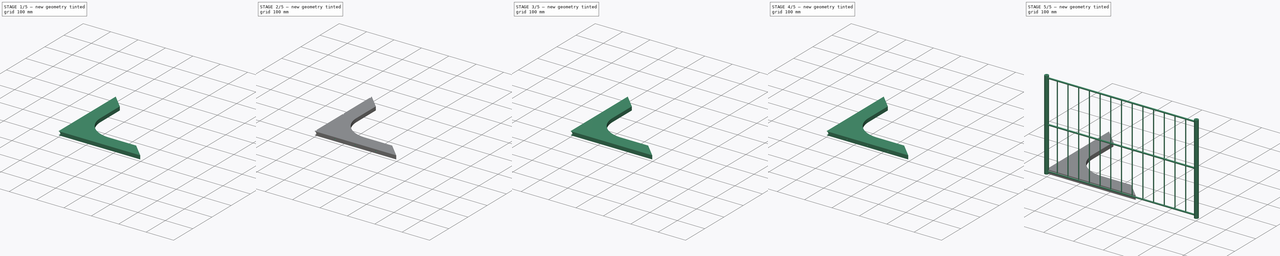
[diagram: build sequence overview — one tinted view per stage of 5, left to right]
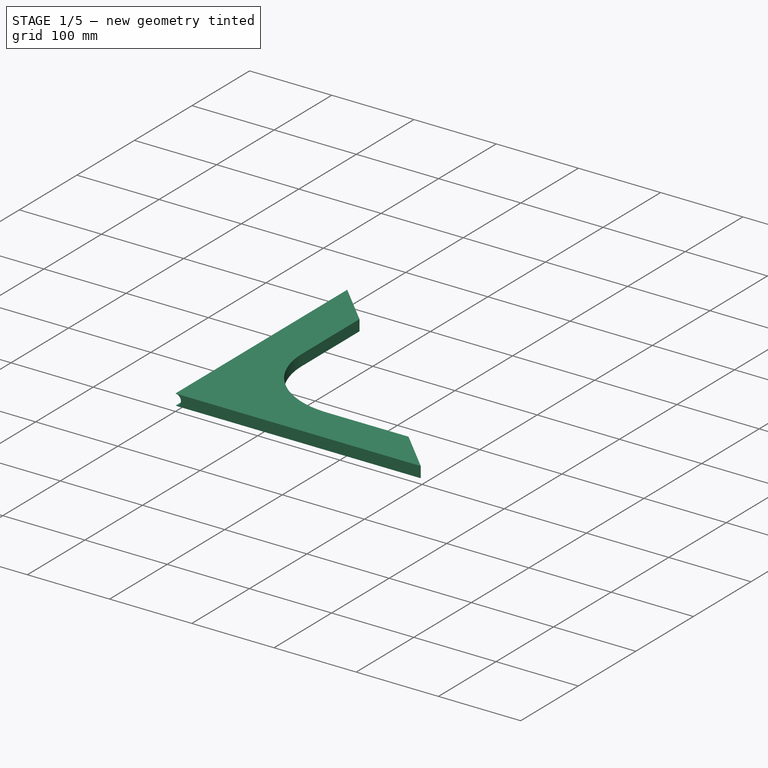
[diagram: stage 1 of 5 — iso view after this stage's code; geometry added in this stage tinted green]
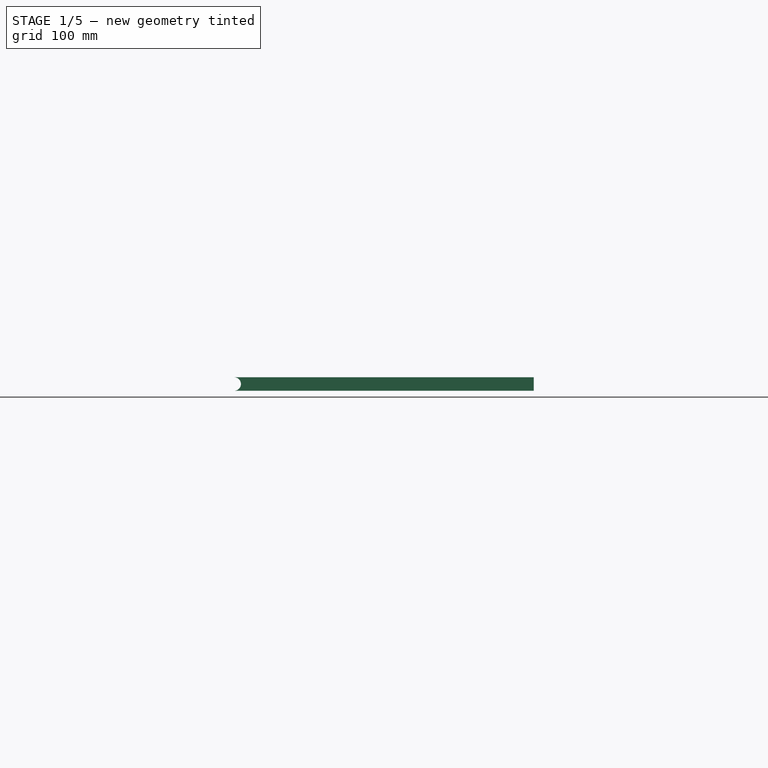
[diagram: stage 1 of 5 — front view after this stage's code; geometry added in this stage tinted green]
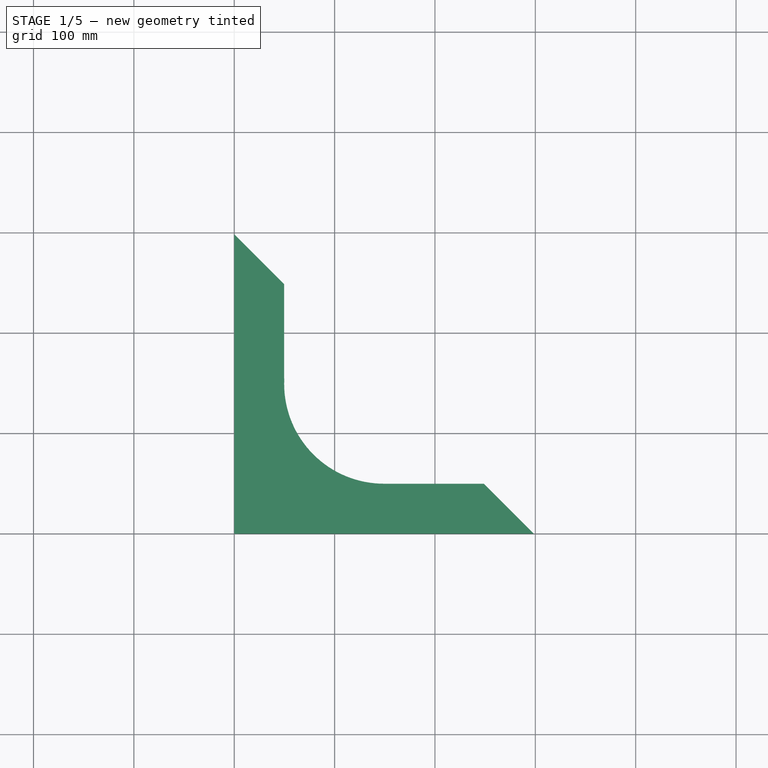
[diagram: stage 1 of 5 — top view after this stage's code; geometry added in this stage tinted green]
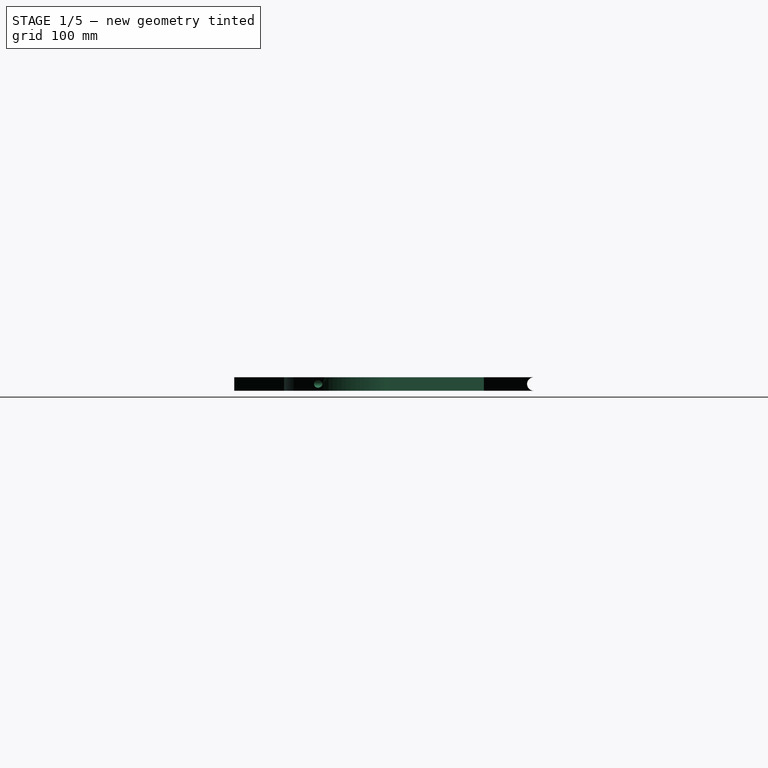
[diagram: stage 1 of 5 — right view after this stage's code; geometry added in this stage tinted green]
FCSTD DOCUMENT  (FreeCAD 0.20R29603 (Git))
Label: Shelf
License: All rights reserved
LicenseURL: http://en.wikipedia.org/wiki/All_rights_reserved
objects: PartDesign::SubtractiveCylinder×10, PartDesign::LinearPattern×6, Sketcher::SketchObject×5, Spreadsheet::Sheet×5, PartDesign::Pad×5, PartDesign::Body×5, PartDesign::SubtractiveBox×4, Part::FeaturePython×3, App::Part×3
note: 54 computed .brp shape members not serialized (recipe doc carries the construction recipe); baked Part::Feature solids carry a one-line shape summary decoded from their .brp

FEATURE [PartDesign::Body] Body003
  Group = -> [Sketch003,Pad003,Cylinder,Cylinder001,Box,Box001,Cylinder002,LinearPattern,Cylinder003,LinearPattern001,Cylinder004,LinearPattern002]
  Origin = -> Origin004
  Tip = -> LinearPattern002
FEATURE [Spreadsheet::Sheet] Spreadsheet003  label="Shelf_holder_dims"
  cells = A1=shelf_holder_height; B1(shelf_holder_height)=298.45; A2=shelf_holder_width; B2(shelf_holder_width)=13.4; A3=shelf_holder_length; B3(shelf_holder_length)=298.45
FEATURE [App::Part] Part001  label="shelf holder left"
  Group = -> [Body003,Spreadsheet003]
  Origin = -> Origin005
  Placement = pos=(494.95,2.748e-13,5.5e-14) rot=(-0.57735,-0.57735,-0.57735;4.18879rad)
FEATURE [Sketcher::SketchObject] Sketch004
  FullyConstrained = true
  MapMode = 5
  Support = -> [XY_Plane006]
  expr: Constraints[6] = <<Shelf_holder_dims001>>.shelf_holder_height
  expr: Constraints[7] = <<Shelf_holder_dims001>>.shelf_holder_length
  sketch-geometry (3):
    g0: LineSegment StartX=0 StartY=0 StartZ=0 EndX=298.45 EndY=0 EndZ=0
    g1: LineSegment StartX=0 StartY=0 StartZ=0 EndX=0 EndY=298.45 EndZ=0
    g2: LineSegment StartX=0 StartY=298.45 StartZ=0 EndX=298.45 EndY=0 EndZ=0
  constraints (8):
    c: Coincident(g0,g-1)
    c: PointOnObject(g0,g-1)
    c: Coincident(g1,g0)
    c: PointOnObject(g1,g-2)
    c: Coincident(g2,g1)
    c: Coincident(g2,g0)
    c: DistanceY(g1,g1) = 298.45
    c: DistanceX(g0,g0) = 298.45
FEATURE [PartDesign::Pad] Pad004
  Direction = (0,0,1)
  Length = 13.4
  Length2 = 10
  Profile = -> Sketch004
  ReferenceAxis = -> Sketch004 [N_Axis]
  Type = 0
  expr: Length = <<Shelf_holder_dims001>>.shelf_holder_width
FEATURE [PartDesign::SubtractiveCylinder] Cylinder005
  Angle = 180
  AttacherType = Attacher::AttachEngine3D
  AttachmentOffset = pos=(0,6.7,0) rot=(0,0,1;1.5708rad)
  BaseFeature = -> Pad004
  FirstAngle = 0
  Height = 298.45
  MapMode = 5
  Placement = pos=(0,1.5e-15,6.7) rot=(0.57735,0.57735,0.57735;4.18879rad)
  Radius = 6.7
  SecondAngle = 0
  Support = -> [Pad004]
  expr: .AttachmentOffset.Base.y = <<Shelf_holder_dims001>>.shelf_holder_width / 2
  expr: Height = <<Shelf_holder_dims001>>.shelf_holder_length
  expr: Radius = <<Shelf_holder_dims001>>.shelf_holder_width / 2
FEATURE [PartDesign::SubtractiveCylinder] Cylinder006
  Angle = 360
  AttacherType = Attacher::AttachEngine3D
  AttachmentOffset = pos=(149.225,149.225,-8) rot=(0,0,1;0rad)
  BaseFeature = -> Cylinder005
  FirstAngle = 0
  Height = 32
  MapMode = 5
  Placement = pos=(149.225,149.225,-8) rot=(0,0,1;0rad)
  Radius = 99.4833
  SecondAngle = 0
  Support = -> [Cylinder005]
  expr: .AttachmentOffset.Base.x = <<Shelf_holder_dims001>>.shelf_holder_length / 2
  expr: .AttachmentOffset.Base.y = <<Shelf_holder_dims001>>.shelf_holder_height / 2
  expr: Radius = <<Shelf_holder_dims001>>.shelf_holder_length / 3
FEATURE [PartDesign::SubtractiveBox] Box002
  AttacherType = Attacher::AttachEngine3D
  AttachmentOffset = pos=(0,69.4833,-17) rot=(0,0,1;0rad)
  BaseFeature = -> Cylinder006
  Height = 21
  Length = 149.225
  MapMode = 5
  Placement = pos=(149.225,79.7417,17) rot=(1,0,0;3.14159rad)
  Support = -> [Cylinder006]
  Width = 30
  expr: .AttachmentOffset.Base.y = <<Shelf_holder_dims001>>.shelf_holder_length / 3 - 30
  expr: Length = <<Shelf_holder_dims001>>.shelf_holder_length / 2
FEATURE [PartDesign::SubtractiveBox] Box003
  AttacherType = Attacher::AttachEngine3D
  AttachmentOffset = pos=(-99.4833,-223.837,-17) rot=(0,0,1;0rad)
  BaseFeature = -> Box002
  Height = 22
  Length = 33
  MapMode = 5
  Placement = pos=(49.7417,303.579,17) rot=(1,0,0;3.14159rad)
  Support = -> [Box002]
  Width = 149.225
  expr: .AttachmentOffset.Base.x = <<Shelf_holder_dims001>>.shelf_holder_height / -3
  expr: .AttachmentOffset.Base.y = 3 * <<Shelf_holder_dims001>>.shelf_holder_length / -4
  expr: Width = <<Shelf_holder_dims001>>.shelf_holder_length / 2
FEATURE [PartDesign::SubtractiveCylinder] Cylinder007
  Angle = 360
  AttacherType = Attacher::AttachEngine3D
  AttachmentOffset = pos=(-74.6125,6.7,5) rot=(0,0,1;0rad)
  BaseFeature = -> Box003
  FirstAngle = 0
  Height = 105
  MapMode = 5
  Placement = pos=(74.6125,5,6.7) rot=(0,0.707107,0.707107;3.14159rad)
  Radius = 3.7
  SecondAngle = 0
  Support = -> [XZ_Plane006]
  expr: .AttachmentOffset.Base.x = <<Shelf_holder_dims001>>.shelf_holder_length / -4
  expr: .AttachmentOffset.Base.y = <<Shelf_holder_dims001>>.shelf_holder_width / 2
  expr: Radius = <<Shelf_holder_dims001>>.shelf_holder_width / 2 - 3
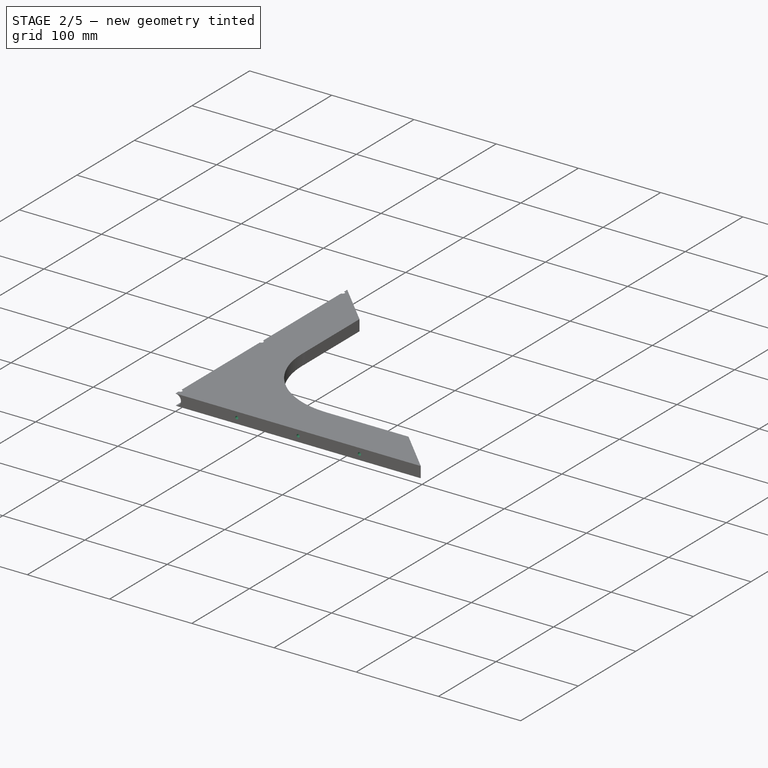
[diagram: stage 2 of 5 — iso view after this stage's code; geometry added in this stage tinted green]
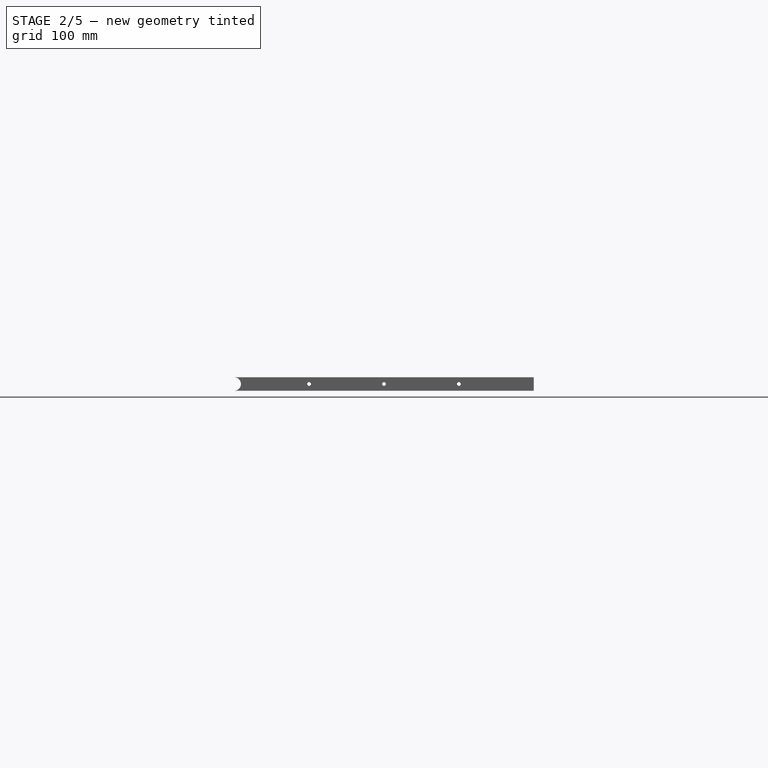
[diagram: stage 2 of 5 — front view after this stage's code; geometry added in this stage tinted green]
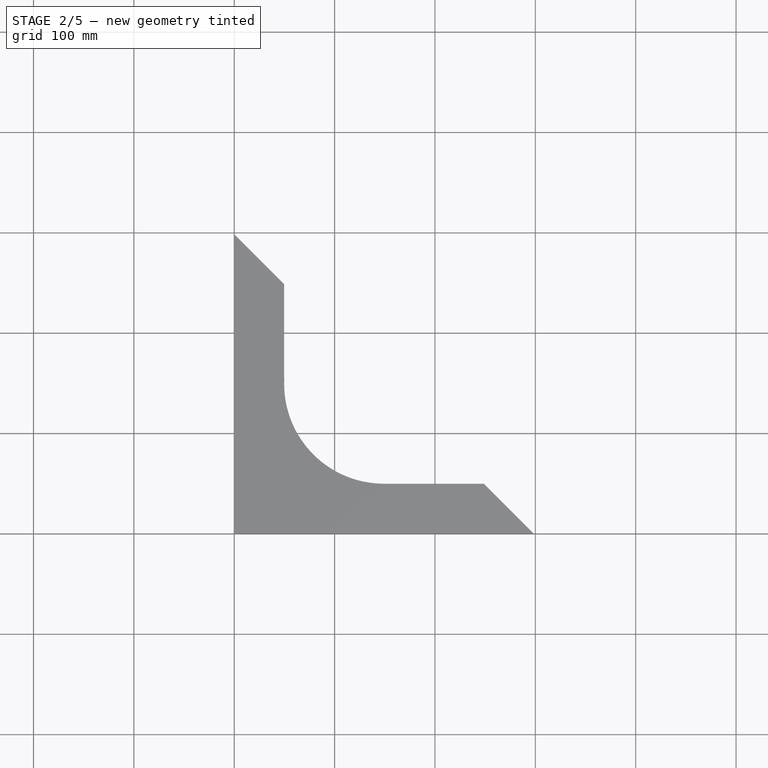
[diagram: stage 2 of 5 — top view after this stage's code; geometry added in this stage tinted green]
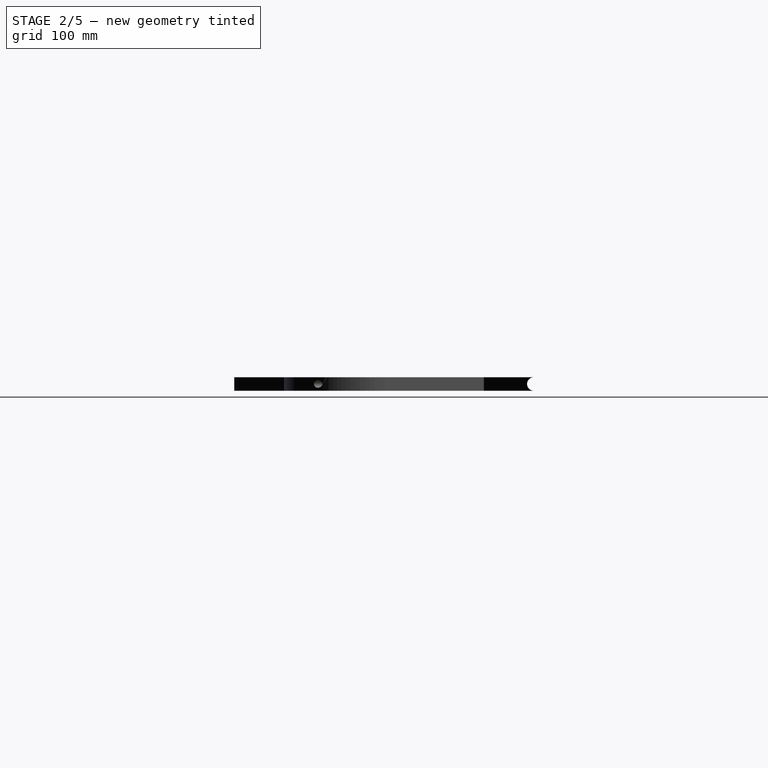
[diagram: stage 2 of 5 — right view after this stage's code; geometry added in this stage tinted green]
FEATURE [PartDesign::LinearPattern] LinearPattern003
  BaseFeature = -> Cylinder007
  Direction = -> X_Axis006
  Length = 149.225
  Occurrences = 3
  Originals = -> [Cylinder007]
  Placement = pos=(74.6125,5,6.7) rot=(0,0.707107,0.707107;3.14159rad)
  expr: Length = <<Shelf_holder_dims001>>.shelf_holder_height / 2
FEATURE [PartDesign::SubtractiveCylinder] Cylinder008
  Angle = 360
  AttacherType = Attacher::AttachEngine3D
  AttachmentOffset = pos=(-74.6125,6.7,0) rot=(0,0,1;0rad)
  BaseFeature = -> LinearPattern003
  FirstAngle = 0
  Height = 100
  MapMode = 5
  Placement = pos=(74.6125,-1.5e-15,6.7) rot=(0,0.707107,0.707107;3.14159rad)
  Radius = 1.85
  SecondAngle = 0
  Support = -> [XZ_Plane006]
  expr: .AttachmentOffset.Base.x = <<Shelf_holder_dims001>>.shelf_holder_length / -4
  expr: .AttachmentOffset.Base.y = <<Shelf_holder_dims001>>.shelf_holder_width / 2
  expr: Radius = (<<Shelf_holder_dims001>>.shelf_holder_width / 2 - 3) / 2
FEATURE [PartDesign::LinearPattern] LinearPattern004
  BaseFeature = -> Cylinder008
  Direction = -> X_Axis006
  Length = 149.225
  Occurrences = 3
  Originals = -> [Cylinder008]
  Placement = pos=(74.6125,1e-15,6.7) rot=(0,0.707107,0.707107;3.14159rad)
  expr: Length = <<Shelf_holder_dims001>>.shelf_holder_length / 2
FEATURE [PartDesign::SubtractiveCylinder] Cylinder009
  Angle = 360
  AttacherType = Attacher::AttachEngine3D
  AttachmentOffset = pos=(0,8.05625,5) rot=(0,0,1;0rad)
  BaseFeature = -> LinearPattern004
  FirstAngle = 0
  Height = 10
  MapMode = 5
  Placement = pos=(0,8.05625,5) rot=(0,0,1;0rad)
  Radius = 2.55
  SecondAngle = 0
  Support = -> [XY_Plane006]
FEATURE [PartDesign::LinearPattern] LinearPattern005
  BaseFeature = -> Cylinder009
  Direction = -> Y_Axis006
  Length = 282.337
  Occurrences = 3
  Originals = -> [Cylinder009]
  Placement = pos=(0,8.05625,5) rot=(0,0,1;0rad)
  expr: Length = 141.16875 * 2
FEATURE [PartDesign::Body] Body004
  Group = -> [Sketch004,Pad004,Cylinder005,Cylinder006,Box002,Box003,Cylinder007,LinearPattern003,Cylinder008,LinearPattern004,Cylinder009,LinearPattern005]
  Origin = -> Origin006
  Tip = -> LinearPattern005
FEATURE [Spreadsheet::Sheet] Spreadsheet004  label="Shelf_holder_dims001"
  cells = A1=shelf_holder_height; B1(shelf_holder_height)=298.45; A2=shelf_holder_width; B2(shelf_holder_width)=13.4; A3=shelf_holder_length; B3(shelf_holder_length)=298.45
FEATURE [App::Part] Part002  label="shelf holder right"
  Group = -> [Body004,Spreadsheet004]
  Origin = -> Origin007
  Placement = pos=(-6.7,-1.5e-15,0) rot=(0.57735,0.57735,0.57735;2.0944rad)
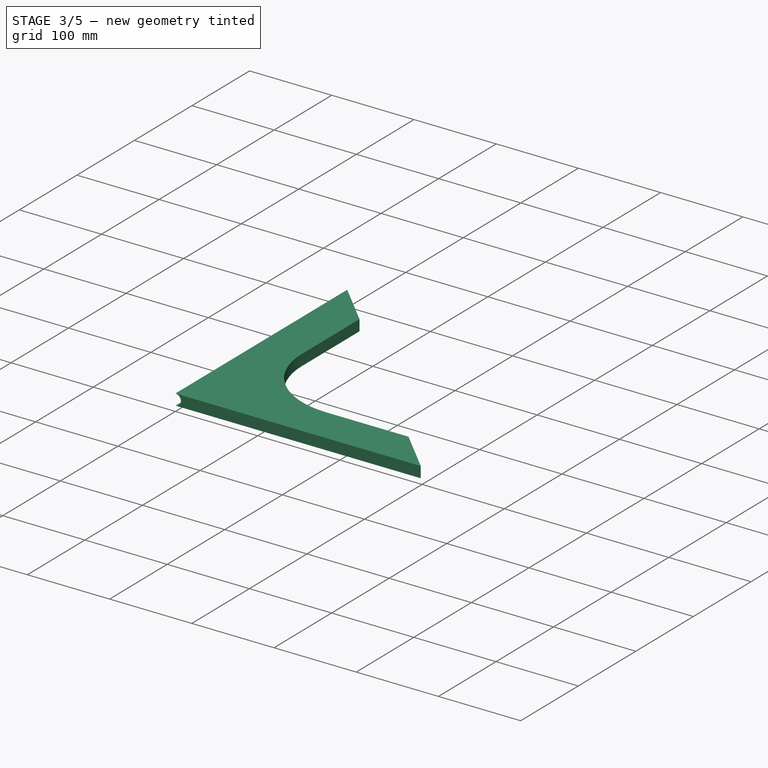
[diagram: stage 3 of 5 — iso view after this stage's code; geometry added in this stage tinted green]
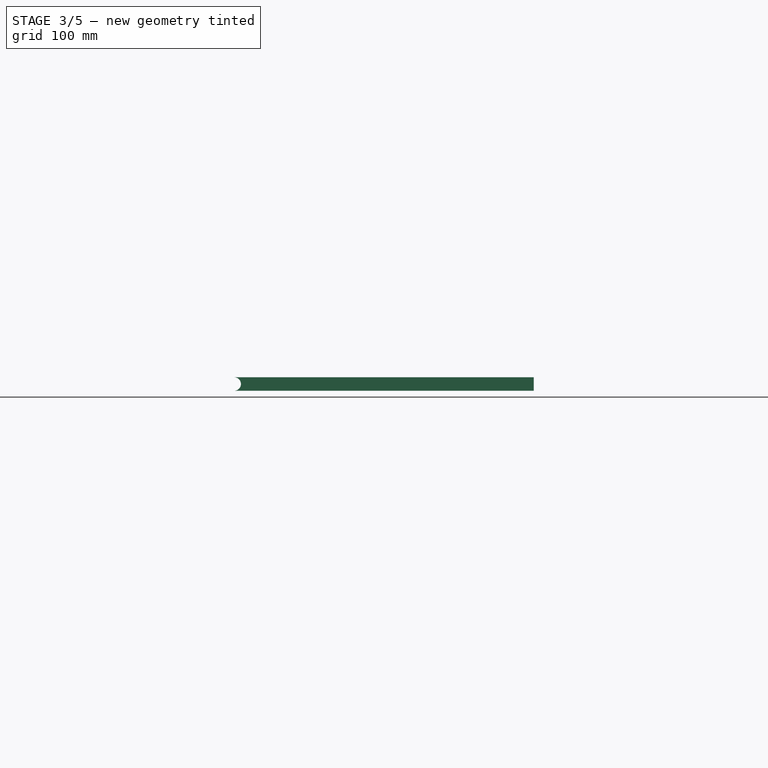
[diagram: stage 3 of 5 — front view after this stage's code; geometry added in this stage tinted green]
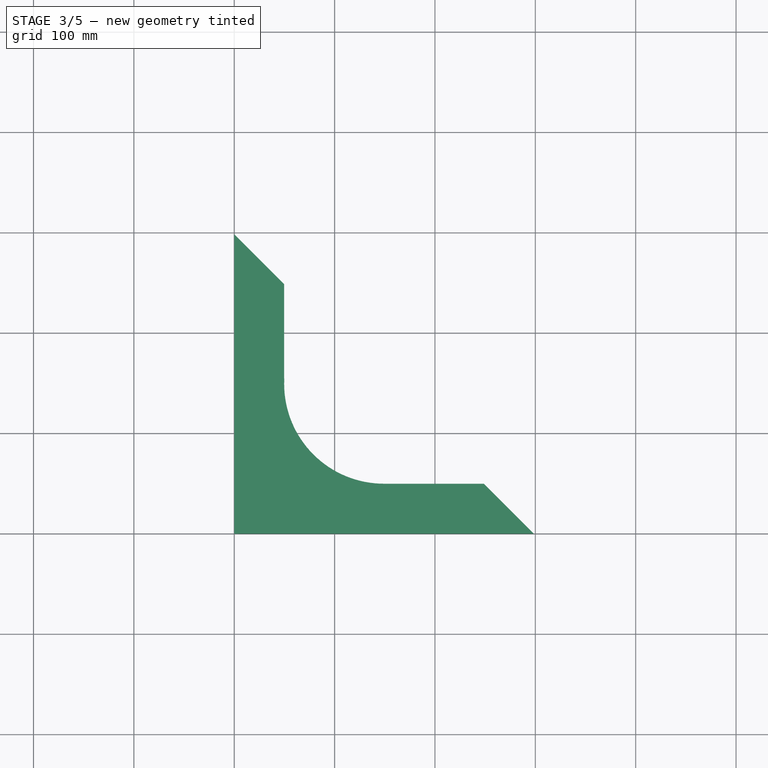
[diagram: stage 3 of 5 — top view after this stage's code; geometry added in this stage tinted green]
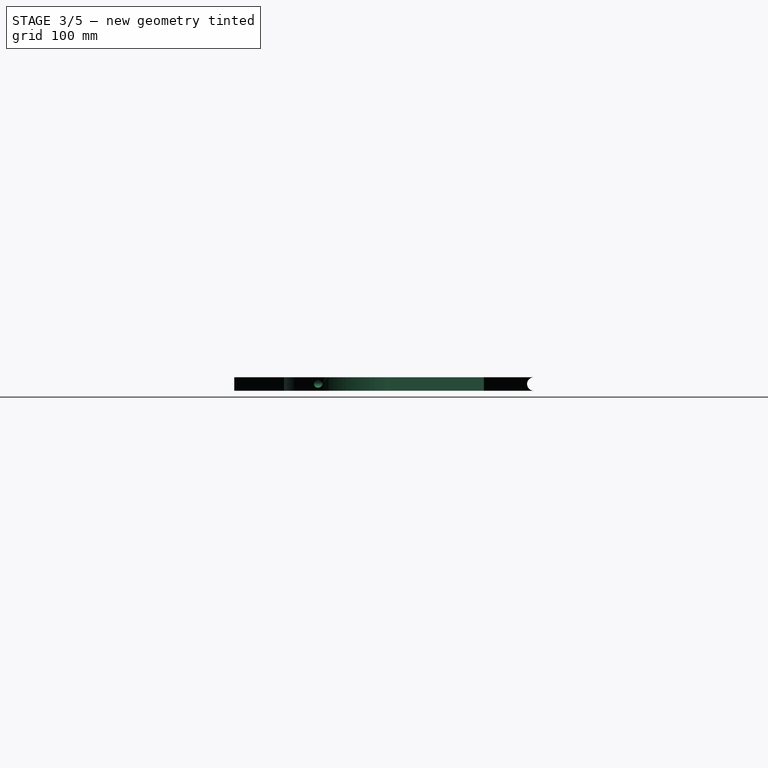
[diagram: stage 3 of 5 — right view after this stage's code; geometry added in this stage tinted green]
FEATURE [App::Part] Part  label="Shelf_part"
  Group = -> [Body,Spreadsheet,Body001,Spreadsheet001,Spreadsheet002,Body002,Array,Array002,Array003]
  Origin = -> Origin
FEATURE [Sketcher::SketchObject] Sketch003
  FullyConstrained = true
  MapMode = 5
  Support = -> [XY_Plane004]
  expr: Constraints[6] = <<Shelf_holder_dims>>.shelf_holder_height
  expr: Constraints[7] = <<Shelf_holder_dims>>.shelf_holder_length
  sketch-geometry (3):
    g0: LineSegment StartX=0 StartY=0 StartZ=0 EndX=298.45 EndY=0 EndZ=0
    g1: LineSegment StartX=0 StartY=0 StartZ=0 EndX=0 EndY=298.45 EndZ=0
    g2: LineSegment StartX=0 StartY=298.45 StartZ=0 EndX=298.45 EndY=0 EndZ=0
  constraints (8):
    c: Coincident(g0,g-1)
    c: PointOnObject(g0,g-1)
    c: Coincident(g1,g0)
    c: PointOnObject(g1,g-2)
    c: Coincident(g2,g1)
    c: Coincident(g2,g0)
    c: DistanceY(g1,g1) = 298.45
    c: DistanceX(g0,g0) = 298.45
FEATURE [PartDesign::Pad] Pad003
  Direction = (0,0,1)
  Length = 13.4
  Length2 = 10
  Profile = -> Sketch003
  ReferenceAxis = -> Sketch003 [N_Axis]
  Type = 0
  expr: Length = <<Shelf_holder_dims>>.shelf_holder_width
FEATURE [PartDesign::SubtractiveCylinder] Cylinder
  Angle = 180
  AttacherType = Attacher::AttachEngine3D
  AttachmentOffset = pos=(0,6.7,0) rot=(0,0,1;1.5708rad)
  BaseFeature = -> Pad003
  FirstAngle = 0
  Height = 298.45
  MapMode = 5
  Placement = pos=(0,1.5e-15,6.7) rot=(0.57735,0.57735,0.57735;4.18879rad)
  Radius = 6.7
  SecondAngle = 0
  Support = -> [Pad003]
  expr: .AttachmentOffset.Base.y = <<Shelf_holder_dims>>.shelf_holder_width / 2
  expr: Height = <<Shelf_holder_dims>>.shelf_holder_length
  expr: Radius = <<Shelf_holder_dims>>.shelf_holder_width / 2
FEATURE [PartDesign::SubtractiveCylinder] Cylinder001
  Angle = 360
  AttacherType = Attacher::AttachEngine3D
  AttachmentOffset = pos=(149.225,149.225,-8) rot=(0,0,1;0rad)
  BaseFeature = -> Cylinder
  FirstAngle = 0
  Height = 32
  MapMode = 5
  Placement = pos=(149.225,149.225,-8) rot=(0,0,1;0rad)
  Radius = 99.4833
  SecondAngle = 0
  Support = -> [Cylinder]
  expr: .AttachmentOffset.Base.x = <<Shelf_holder_dims>>.shelf_holder_length / 2
  expr: .AttachmentOffset.Base.y = <<Shelf_holder_dims>>.shelf_holder_height / 2
  expr: Radius = <<Shelf_holder_dims>>.shelf_holder_length / 3
FEATURE [PartDesign::SubtractiveBox] Box
  AttacherType = Attacher::AttachEngine3D
  AttachmentOffset = pos=(0,69.4833,-17) rot=(0,0,1;0rad)
  BaseFeature = -> Cylinder001
  Height = 21
  Length = 149.225
  MapMode = 5
  Placement = pos=(149.225,79.7417,17) rot=(1,0,0;3.14159rad)
  Support = -> [Cylinder001]
  Width = 30
  expr: .AttachmentOffset.Base.y = <<Shelf_holder_dims>>.shelf_holder_length / 3 - 30
  expr: Length = <<Shelf_holder_dims>>.shelf_holder_length / 2
FEATURE [PartDesign::SubtractiveBox] Box001
  AttacherType = Attacher::AttachEngine3D
  AttachmentOffset = pos=(-99.4833,-223.837,-17) rot=(0,0,1;0rad)
  BaseFeature = -> Box
  Height = 22
  Length = 33
  MapMode = 5
  Placement = pos=(49.7417,303.579,17) rot=(1,0,0;3.14159rad)
  Support = -> [Box]
  Width = 149.225
  expr: .AttachmentOffset.Base.x = <<Shelf_holder_dims>>.shelf_holder_height / -3
  expr: .AttachmentOffset.Base.y = 3 * <<Shelf_holder_dims>>.shelf_holder_length / -4
  expr: Width = <<Shelf_holder_dims>>.shelf_holder_length / 2
FEATURE [PartDesign::SubtractiveCylinder] Cylinder002
  Angle = 360
  AttacherType = Attacher::AttachEngine3D
  AttachmentOffset = pos=(-74.6125,6.7,5) rot=(0,0,1;0rad)
  BaseFeature = -> Box001
  FirstAngle = 0
  Height = 105
  MapMode = 5
  Placement = pos=(74.6125,5,6.7) rot=(0,0.707107,0.707107;3.14159rad)
  Radius = 3.7
  SecondAngle = 0
  Support = -> [XZ_Plane004]
  expr: .AttachmentOffset.Base.x = <<Shelf_holder_dims>>.shelf_holder_length / -4
  expr: .AttachmentOffset.Base.y = <<Shelf_holder_dims>>.shelf_holder_width / 2
  expr: Radius = <<Shelf_holder_dims>>.shelf_holder_width / 2 - 3
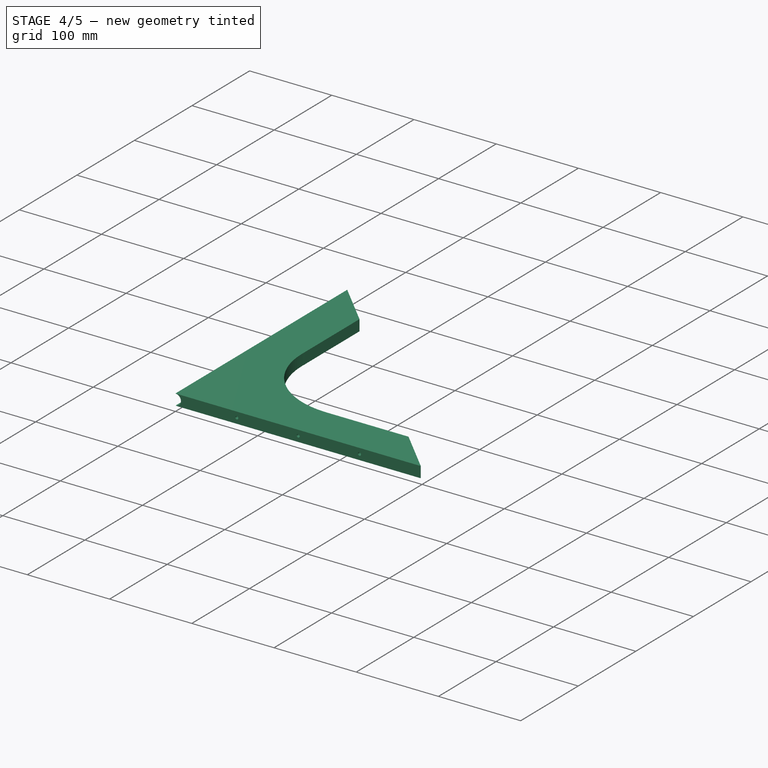
[diagram: stage 4 of 5 — iso view after this stage's code; geometry added in this stage tinted green]
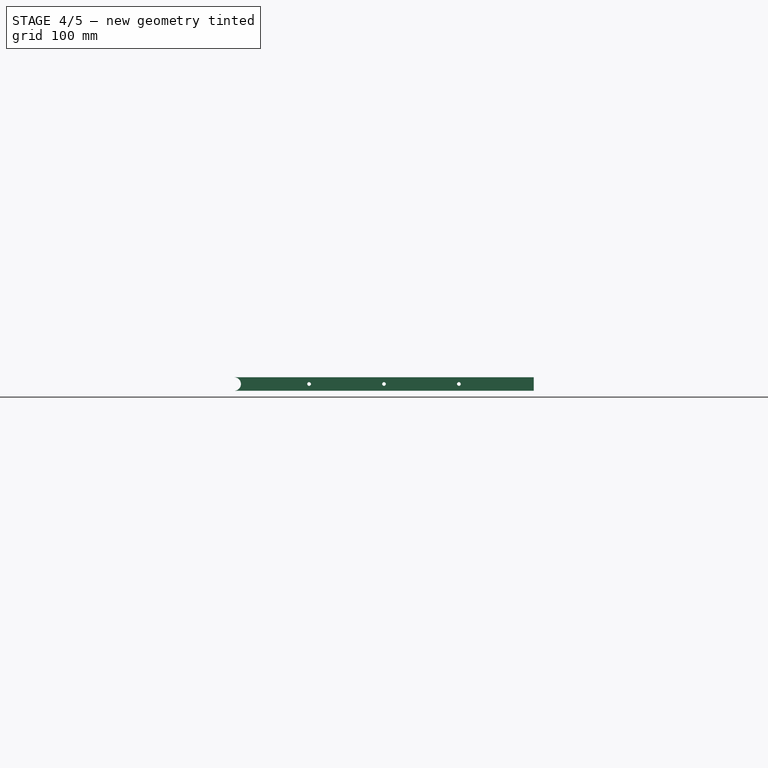
[diagram: stage 4 of 5 — front view after this stage's code; geometry added in this stage tinted green]
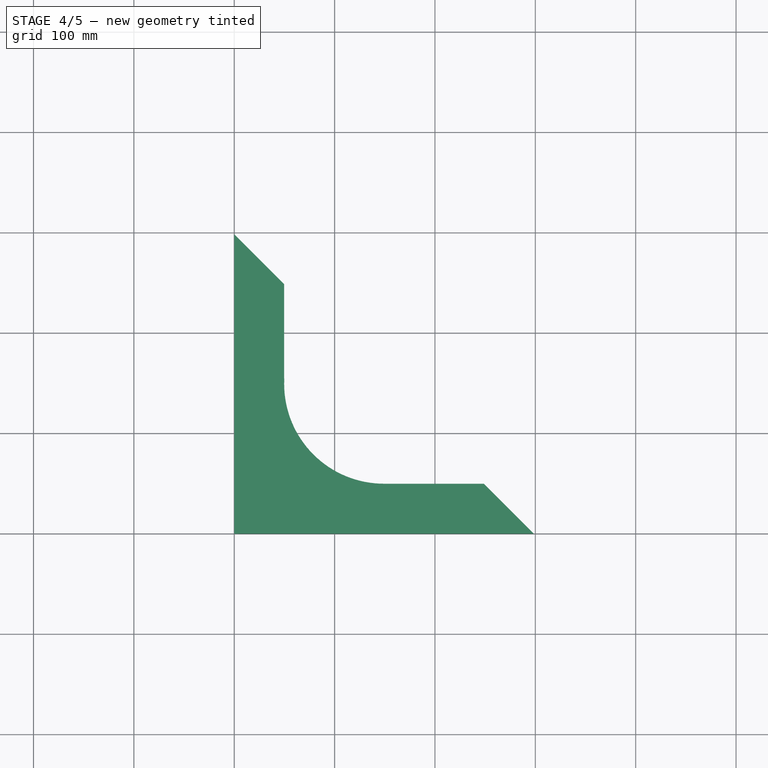
[diagram: stage 4 of 5 — top view after this stage's code; geometry added in this stage tinted green]
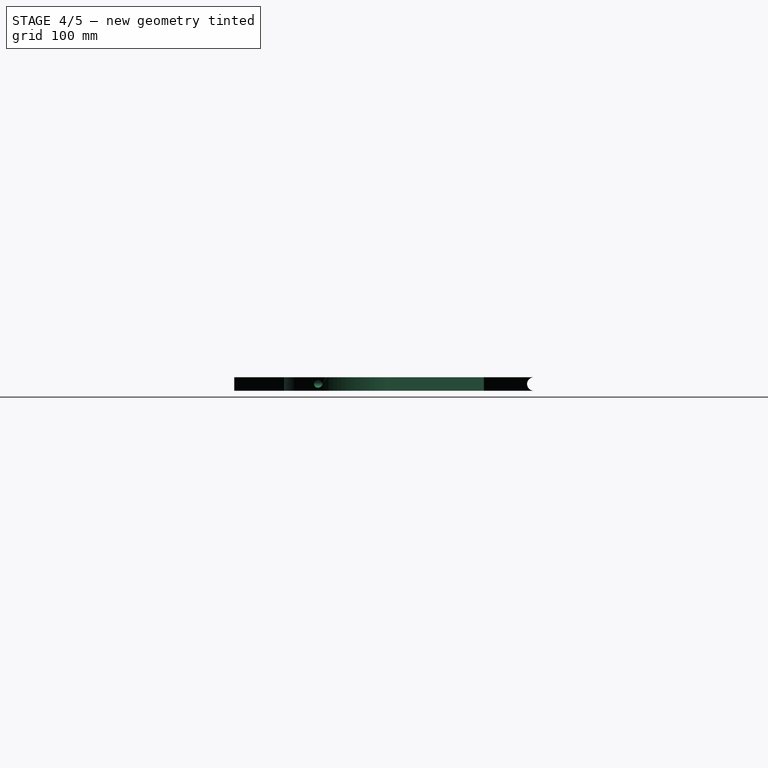
[diagram: stage 4 of 5 — right view after this stage's code; geometry added in this stage tinted green]
FEATURE [PartDesign::LinearPattern] LinearPattern
  BaseFeature = -> Cylinder002
  Direction = -> X_Axis004
  Length = 149.225
  Occurrences = 3
  Originals = -> [Cylinder002]
  Placement = pos=(74.6125,5,6.7) rot=(0,0.707107,0.707107;3.14159rad)
  expr: Length = <<Shelf_holder_dims>>.shelf_holder_height / 2
FEATURE [PartDesign::SubtractiveCylinder] Cylinder003
  Angle = 360
  AttacherType = Attacher::AttachEngine3D
  AttachmentOffset = pos=(-74.6125,6.7,0) rot=(0,0,1;0rad)
  BaseFeature = -> LinearPattern
  FirstAngle = 0
  Height = 100
  MapMode = 5
  Placement = pos=(74.6125,-1.5e-15,6.7) rot=(0,0.707107,0.707107;3.14159rad)
  Radius = 1.85
  SecondAngle = 0
  Support = -> [XZ_Plane004]
  expr: .AttachmentOffset.Base.x = <<Shelf_holder_dims>>.shelf_holder_length / -4
  expr: .AttachmentOffset.Base.y = <<Shelf_holder_dims>>.shelf_holder_width / 2
  expr: Radius = (<<Shelf_holder_dims>>.shelf_holder_width / 2 - 3) / 2
FEATURE [PartDesign::LinearPattern] LinearPattern001
  BaseFeature = -> Cylinder003
  Direction = -> X_Axis004
  Length = 149.225
  Occurrences = 3
  Originals = -> [Cylinder003]
  Placement = pos=(74.6125,1e-15,6.7) rot=(0,0.707107,0.707107;3.14159rad)
  expr: Length = <<Shelf_holder_dims>>.shelf_holder_length / 2
FEATURE [PartDesign::SubtractiveCylinder] Cylinder004
  Angle = 360
  AttacherType = Attacher::AttachEngine3D
  AttachmentOffset = pos=(0,8.05625,0) rot=(0,0,1;0rad)
  BaseFeature = -> LinearPattern001
  FirstAngle = 0
  Height = 10
  MapMode = 5
  Placement = pos=(0,8.05625,0) rot=(0,0,1;0rad)
  Radius = 2.55
  SecondAngle = 0
  Support = -> [XY_Plane004]
FEATURE [PartDesign::LinearPattern] LinearPattern002
  BaseFeature = -> Cylinder004
  Direction = -> Y_Axis004
  Length = 282.337
  Occurrences = 3
  Originals = -> [Cylinder004]
  Placement = pos=(0,8.05625,0) rot=(0,0,1;0rad)
  expr: Length = 141.16875 * 2
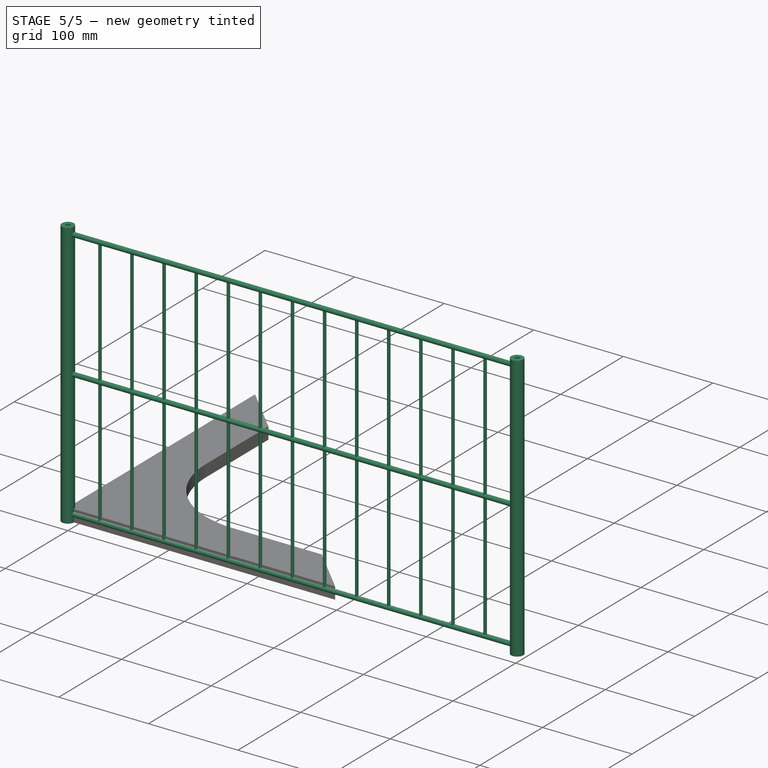
[diagram: stage 5 of 5 — iso view after this stage's code; geometry added in this stage tinted green]
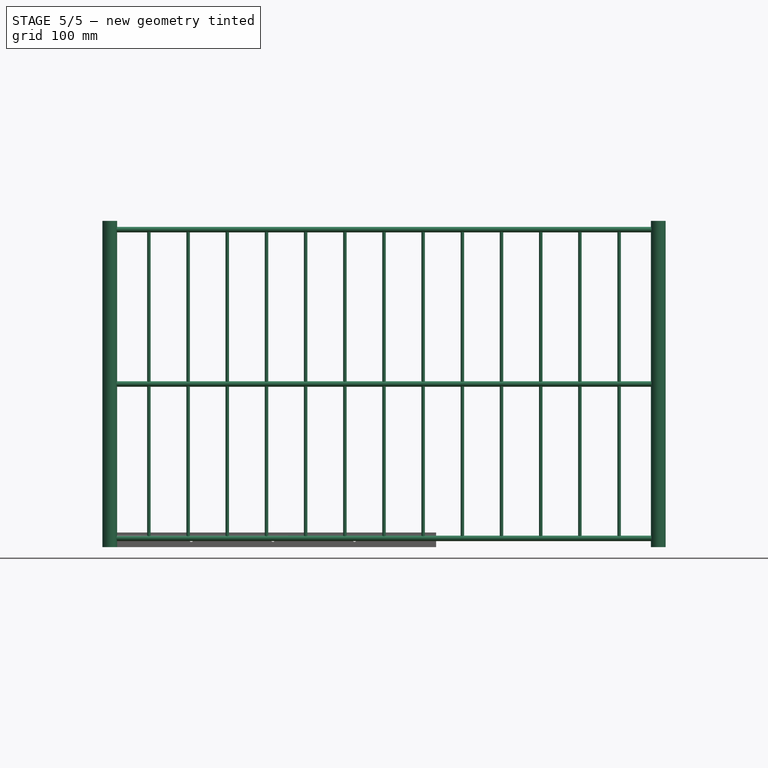
[diagram: stage 5 of 5 — front view after this stage's code; geometry added in this stage tinted green]
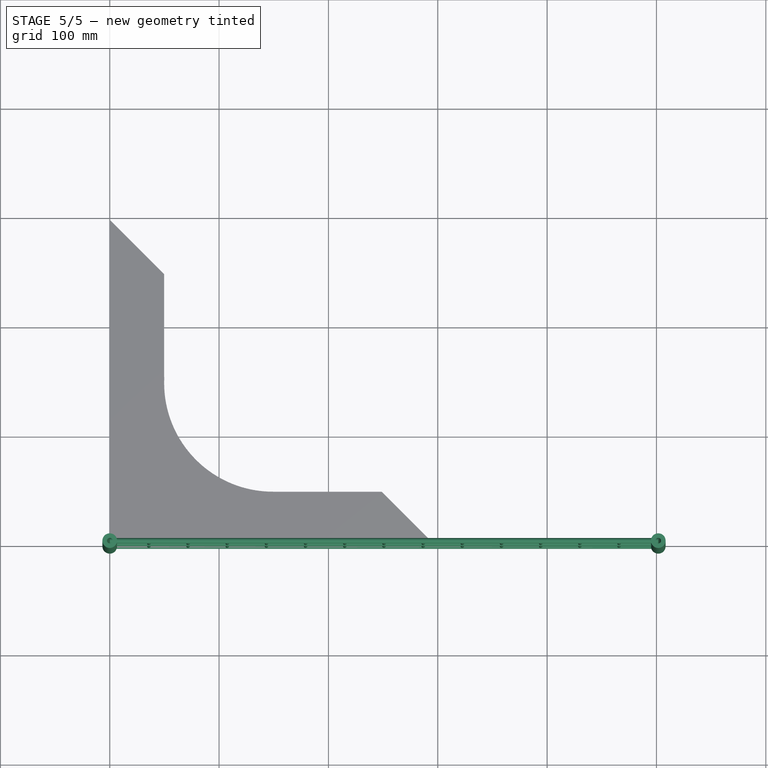
[diagram: stage 5 of 5 — top view after this stage's code; geometry added in this stage tinted green]
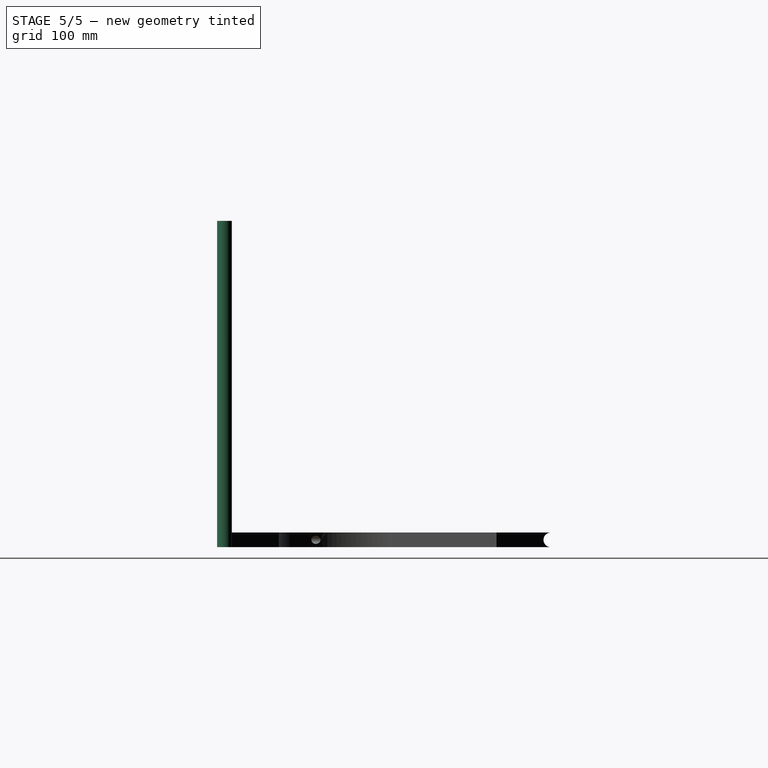
[diagram: stage 5 of 5 — right view after this stage's code; geometry added in this stage tinted green]
FEATURE [Sketcher::SketchObject] Sketch
  FullyConstrained = true
  MapMode = 5
  Support = -> [XY_Plane001]
  expr: Constraints[1] = <<cross_rod_dims>>.cross_rod_diameter
  sketch-geometry (1):
    g0: Circle CenterX=0 CenterY=0 CenterZ=0 NormalX=0 NormalY=0 NormalZ=1 AngleXU=0 Radius=2.5
  constraints (2):
    c: Coincident(g0,g-1)
    c: Diameter(g0) = 5
FEATURE [Spreadsheet::Sheet] Spreadsheet  label="cross_rod_dims"
  cells = A1=cross_rod_diameter; B1(cross_rod_diameter)=5; A2=cross_rod_length; B2(cross_rod_length)=501.65
FEATURE [Sketcher::SketchObject] Sketch001
  FullyConstrained = true
  MapMode = 5
  Support = -> [XY_Plane002]
  expr: Constraints[1] = <<shelf_rod_dims>>.shelf_rod_diameter
  sketch-geometry (1):
    g0: Circle CenterX=0 CenterY=0 CenterZ=0 NormalX=0 NormalY=0 NormalZ=1 AngleXU=0 Radius=1.6
  constraints (2):
    c: Coincident(g0,g-1)
    c: Diameter(g0) = 3.2
FEATURE [PartDesign::Pad] Pad001
  Direction = (0,0,1)
  Length = 285.75
  Length2 = 10
  Profile = -> Sketch001
  ReferenceAxis = -> Sketch001 [N_Axis]
  Type = 0
  expr: Length = <<shelf_rod_dims>>.shelf_rod_length
FEATURE [PartDesign::Body] Body001  label="shelf rod"
  Group = -> [Sketch001,Pad001]
  Origin = -> Origin002
  Tip = -> Pad001
FEATURE [Spreadsheet::Sheet] Spreadsheet001  label="shelf_rod_dims"
  cells = A1=shelf_rod_diameter; B1(shelf_rod_diameter)=3.2; A2=shelf_rod_length; B2(shelf_rod_length)=285.75
FEATURE [Spreadsheet::Sheet] Spreadsheet002  label="big_rod_dims"
  cells = A1=big_rod_OD; B1(BIG_ROD_OD)=13.4; A2=big_rod_ID; B2(big_rod_ID)=5.1; A3=big_rod_Length; B3(big_rod_Length)=298.45
FEATURE [Sketcher::SketchObject] Sketch002
  FullyConstrained = true
  MapMode = 5
  Support = -> [XY_Plane003]
  expr: Constraints[1] = <<big_rod_dims>>.BIG_ROD_OD
  expr: Constraints[3] = <<big_rod_dims>>.big_rod_ID
  sketch-geometry (2):
    g0: Circle CenterX=0 CenterY=0 CenterZ=0 NormalX=0 NormalY=0 NormalZ=1 AngleXU=0 Radius=6.7
    g1: Circle CenterX=0 CenterY=0 CenterZ=0 NormalX=0 NormalY=0 NormalZ=1 AngleXU=0 Radius=2.55
  constraints (4):
    c: Coincident(g0,g-1)
    c: Diameter(g0) = 13.4
    c: Coincident(g1,g0)
    c: Diameter(g1) = 5.1
FEATURE [PartDesign::Pad] Pad002
  Direction = (0,0,1)
  Length = 298.45
  Length2 = 10
  Profile = -> Sketch002
  ReferenceAxis = -> Sketch002 [N_Axis]
  Type = 0
  expr: Length = <<big_rod_dims>>.big_rod_Length
FEATURE [PartDesign::Body] Body002  label="big rod"
  Group = -> [Sketch002,Pad002]
  Origin = -> Origin003
  Tip = -> Pad002
FEATURE [Part::FeaturePython] Array  label="big rod array"  # Draft array (typed FeaturePython)
  AlwaysSyncPlacement = false
  Angle = 360
  ArrayType = 0
  Axis = (0,0,1)
  Base = -> Body002
  Center = (0,0,0)
  Count = 2
  ExpandArray = false
  Fuse = false
  IntervalAxis = (0,0,0)
  IntervalX = (501.65,0,0)
  IntervalY = (0,0,0)
  IntervalZ = (0,0,102)
  NumberCircles = 3
  NumberPolar = 5
  NumberX = 2
  NumberY = 1
  NumberZ = 1
  PlacementList = 2 placements: [(0,0,0),(501.65,0,0)]
  RadialDistance = 50
  ScaleList = (2) [(1,1,1),(1,1,1)]
  Symmetry = 1
  TangentialDistance = 25
FEATURE [PartDesign::Pad] Pad
  Direction = (0,0,1)
  Length = 501.65
  Length2 = 10
  Profile = -> Sketch
  ReferenceAxis = -> Sketch [N_Axis]
  Type = 0
  expr: Length = <<cross_rod_dims>>.cross_rod_length
FEATURE [PartDesign::Body] Body  label="cross rod"
  Group = -> [Sketch,Pad]
  Origin = -> Origin001
  Placement = pos=(0,0,0) rot=(0,1,0;1.5708rad)
  Tip = -> Pad
FEATURE [Part::FeaturePython] Array002  label="shelf rod array"  # Draft array (typed FeaturePython)
  AlwaysSyncPlacement = false
  Angle = 360
  ArrayType = 0
  Axis = (0,0,1)
  Base = -> Body001
  Center = (0,0,0)
  Count = 13
  ExpandArray = false
  Fuse = false
  IntervalAxis = (0,0,0)
  IntervalX = (35.8321,0,0)
  IntervalY = (0,0,0)
  IntervalZ = (0,0,0)
  NumberCircles = 3
  NumberPolar = 5
  NumberX = 13
  NumberY = 1
  NumberZ = 1
  Placement = pos=(35.8321,-5.0285e-06,6.35) rot=(0,0,1;0rad)
  PlacementList = 13 placements: arithmetic series from (0,0,0) step (35.8321,0,0) to (429.986,0,0)
  RadialDistance = 50
  ScaleList = (13) [(1,1,1),(1,1,1),(1,1,1),(1,1,1),(1,1,1),(1,1,1),(1,1,1),(1,1,1),(1,1,1),(1,1,1),(1,1,1),(1,1,1),(1,1,1)]
  Symmetry = 1
  TangentialDistance = 25
FEATURE [Part::FeaturePython] Array003  # Draft array (typed FeaturePython)
  AlwaysSyncPlacement = false
  Angle = 360
  ArrayType = 0
  Axis = (0,0,1)
  Base = -> Body
  Center = (0,0,0)
  Count = 3
  ExpandArray = false
  Fuse = false
  IntervalAxis = (0,0,0)
  IntervalX = (0,0,0)
  IntervalY = (0,0,0)
  IntervalZ = (0,0,141.169)
  NumberCircles = 3
  NumberPolar = 5
  NumberX = 1
  NumberY = 1
  NumberZ = 3
  Placement = pos=(0,-9.6038e-07,8.05625) rot=(0,0,1;0rad)
  PlacementList = 3 placements: arithmetic series from (0,0,0) step (0,0,141.169) to (0,0,282.337)
  RadialDistance = 50
  ScaleList = (3) [(1,1,1),(1,1,1),(1,1,1)]
  Symmetry = 1
  TangentialDistance = 25
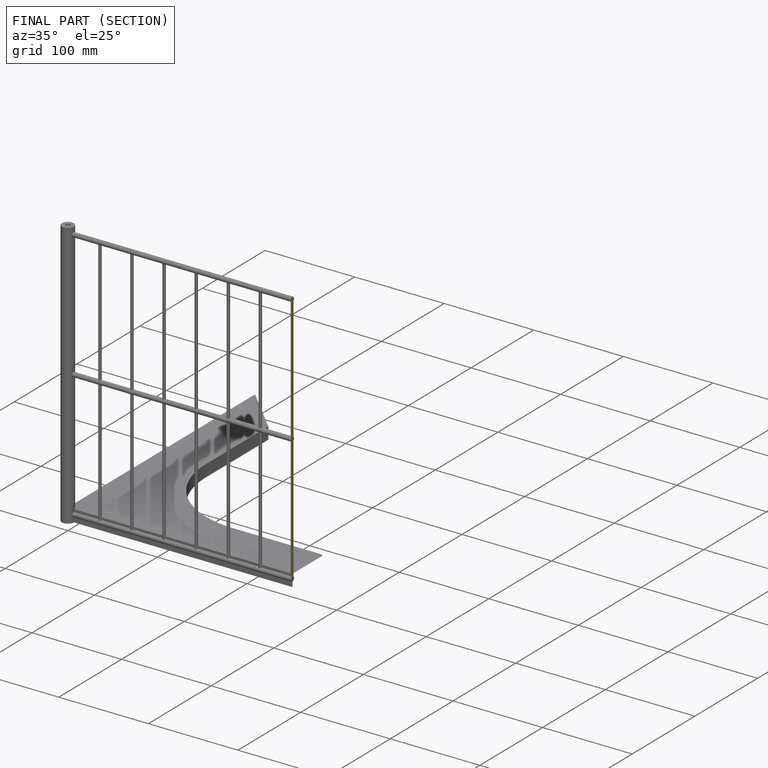
[diagram: finished part — half-section view (interior)]
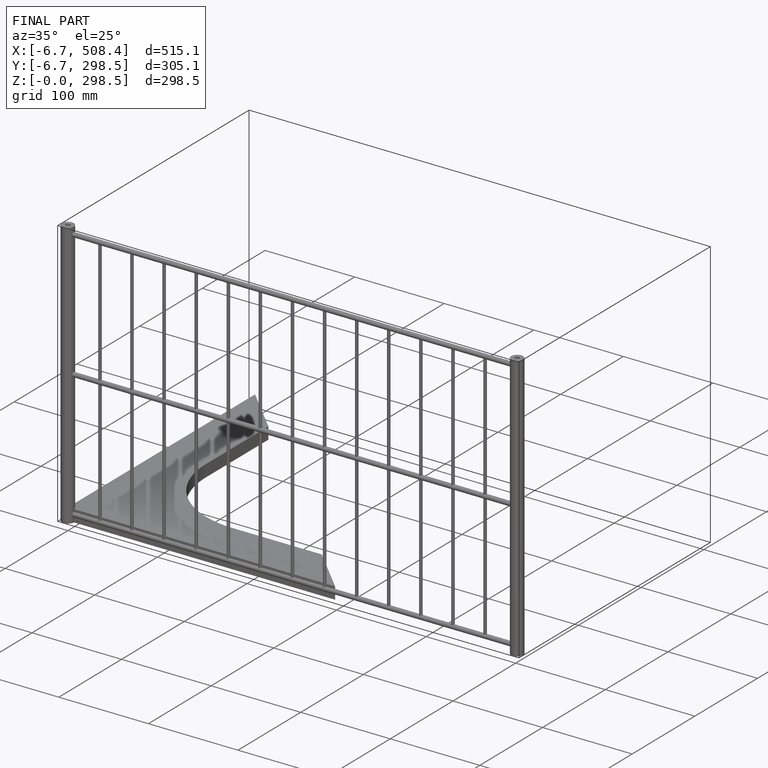
[diagram: finished part — iso view with bounding-box wireframe]
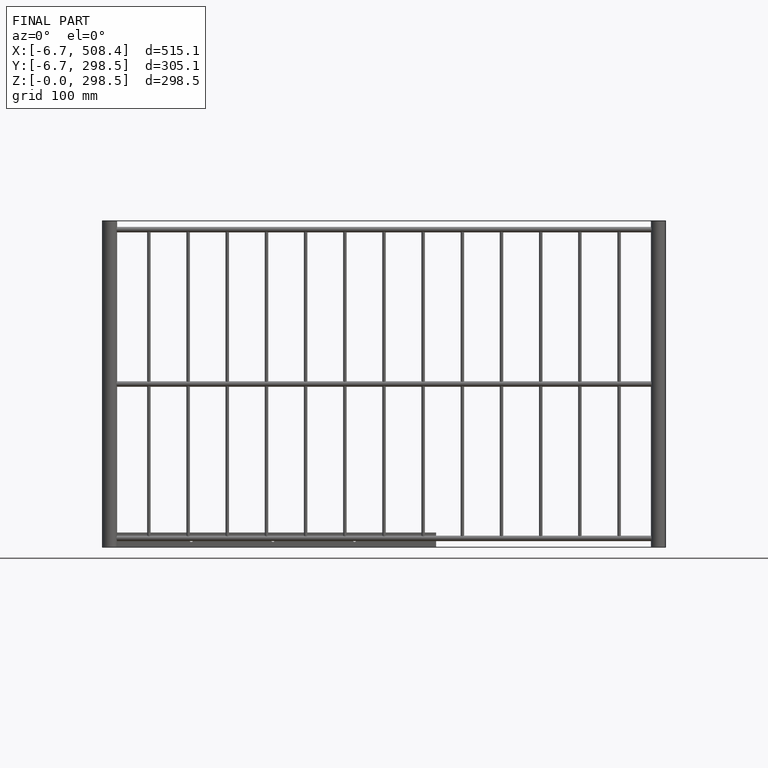
[diagram: finished part — front view with bounding-box wireframe]
